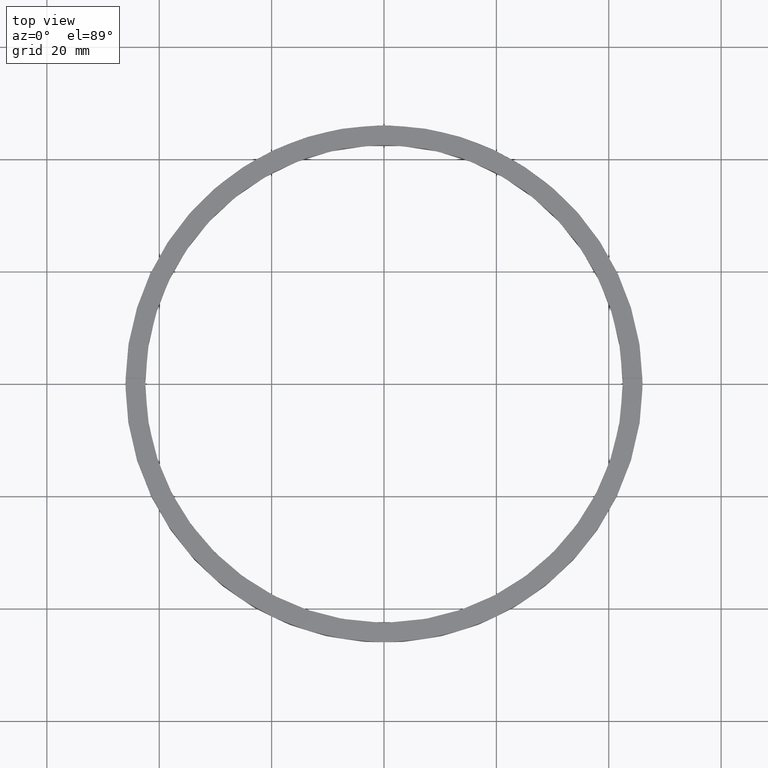
[diagram: clean part render]
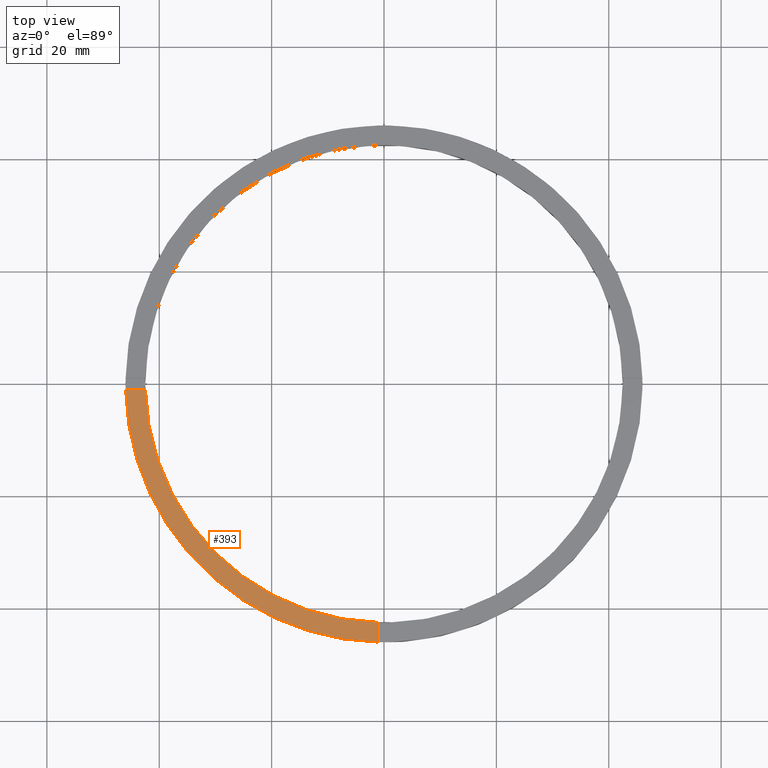
[diagram: same view with one face highlighted and labeled with its STEP entity id]
A machine part, top view. The second image highlights one B-rep face of the part: STEP entity #393.
In plain terms, the highlighted planar face has unit normal (0, 0, 1).
Its self-contained STEP definition (entity closure, byte-faithful):
#1 = VERTEX_POINT ( 'NONE', #701 ) ;
#45 = CARTESIAN_POINT ( 'NONE',  ( -1.000000000000159206, -36.00000000000017764, 4.500000000000000000 ) ) ;
#48 = AXIS2_PLACEMENT_3D ( 'NONE', #626, #296, #380 ) ;
#66 = DIRECTION ( 'NONE',  ( 1.000000000000000000, 0.000000000000000000, 0.000000000000000000 ) ) ;
#75 = FACE_OUTER_BOUND ( 'NONE', #536, .T. ) ;
#151 = EDGE_CURVE ( 'NONE', #243, #1, #352, .T. ) ;
#203 = CARTESIAN_POINT ( 'NONE',  ( -42.48823366533375179, -1.000000000000029532, 4.500000000000000000 ) ) ;
#209 = CARTESIAN_POINT ( 'NONE',  ( -36.00000000000018474, -1.000000000000028200, 4.500000000000000000 ) ) ;
#216 = VERTEX_POINT ( 'NONE', #412 ) ;
#223 = ORIENTED_EDGE ( 'NONE', *, *, #625, .F. ) ;
#236 = VECTOR ( 'NONE', #453, 1000.000000000000000 ) ;
#243 = VERTEX_POINT ( 'NONE', #660 ) ;
#249 = LINE ( 'NONE', #209, #236 ) ;
#273 = LINE ( 'NONE', #45, #539 ) ;
#288 = ORIENTED_EDGE ( 'NONE', *, *, #679, .F. ) ;
#289 = PLANE ( 'NONE',  #571 ) ;
#296 = DIRECTION ( 'NONE',  ( 0.000000000000000000, 0.000000000000000000, 1.000000000000000000 ) ) ;
#352 = CIRCLE ( 'NONE', #48, 46.00000000000000000 ) ;
#380 = DIRECTION ( 'NONE',  ( 1.000000000000000000, 0.000000000000000000, 0.000000000000000000 ) ) ;
#387 = CIRCLE ( 'NONE', #444, 42.50000000000000711 ) ;
#393 = ADVANCED_FACE ( 'NONE', ( #75 ), #289, .T. ) ;
#412 = CARTESIAN_POINT ( 'NONE',  ( -1.000000000000158540, -42.48823366533375179, 4.500000000000000000 ) ) ;
#444 = AXIS2_PLACEMENT_3D ( 'NONE', #585, #552, #66 ) ;
#453 = DIRECTION ( 'NONE',  ( 1.000000000000000000, 1.951563910473907735E-16, -0.000000000000000000 ) ) ;
#472 = DIRECTION ( 'NONE',  ( 0.000000000000000000, 0.000000000000000000, 1.000000000000000000 ) ) ;
#532 = ORIENTED_EDGE ( 'NONE', *, *, #151, .T. ) ;
#536 = EDGE_LOOP ( 'NONE', ( #223, #562, #288, #532 ) ) ;
#538 = CARTESIAN_POINT ( 'NONE',  ( 0.000000000000000000, 0.000000000000000000, 4.500000000000000000 ) ) ;
#539 = VECTOR ( 'NONE', #770, 1000.000000000000000 ) ;
#545 = DIRECTION ( 'NONE',  ( 1.000000000000000000, 0.000000000000000000, -0.000000000000000000 ) ) ;
#552 = DIRECTION ( 'NONE',  ( 0.000000000000000000, 0.000000000000000000, 1.000000000000000000 ) ) ;
#562 = ORIENTED_EDGE ( 'NONE', *, *, #601, .F. ) ;
#571 = AXIS2_PLACEMENT_3D ( 'NONE', #538, #472, #545 ) ;
#585 = CARTESIAN_POINT ( 'NONE',  ( 0.000000000000000000, 0.000000000000000000, 4.500000000000000000 ) ) ;
#601 = EDGE_CURVE ( 'NONE', #750, #216, #387, .T. ) ;
#625 = EDGE_CURVE ( 'NONE', #216, #1, #273, .T. ) ;
#626 = CARTESIAN_POINT ( 'NONE',  ( 0.000000000000000000, 0.000000000000000000, 4.500000000000000000 ) ) ;
#660 = CARTESIAN_POINT ( 'NONE',  ( -45.98912915026767223, -1.000000000000030198, 4.500000000000000000 ) ) ;
#679 = EDGE_CURVE ( 'NONE', #243, #750, #249, .T. ) ;
#701 = CARTESIAN_POINT ( 'NONE',  ( -1.000000000000157874, -45.98912915026767223, 4.500000000000000000 ) ) ;
#750 = VERTEX_POINT ( 'NONE', #203 ) ;
#770 = DIRECTION ( 'NONE',  ( 1.301042606982605074E-16, -1.000000000000000000, 0.000000000000000000 ) ) ;